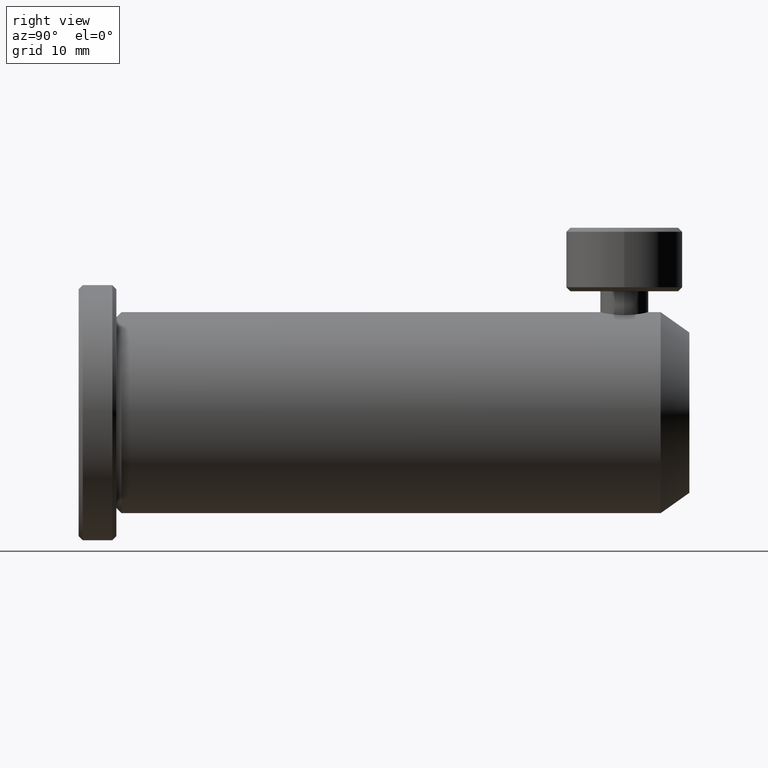
[diagram: clean part render]
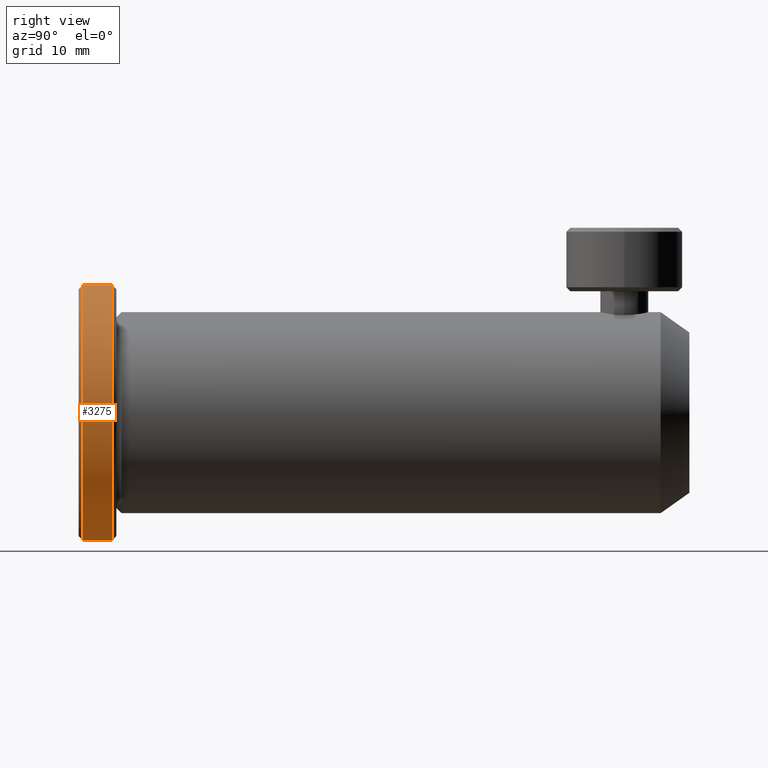
[diagram: same view with one face highlighted and labeled with its STEP entity id]
A machine part, right view. The second image highlights one B-rep face of the part: STEP entity #3275.
In plain terms, the highlighted cylindrical surface (partial cylindrical patch) has radius 15.875 mm, axis along (-0, -1, -0).
Its self-contained STEP definition (entity closure, byte-faithful):
#17 = VECTOR ( 'NONE', #3329, 1000.000000000000000 ) ;
#179 = DIRECTION ( 'NONE',  ( 0.0000000000000000000, 0.0000000000000000000, -1.000000000000000000 ) ) ;
#189 = DIRECTION ( 'NONE',  ( -0.0000000000000000000, -1.000000000000000000, -0.0000000000000000000 ) ) ;
#236 = VERTEX_POINT ( 'NONE', #2259 ) ;
#296 = EDGE_CURVE ( 'NONE', #236, #1124, #430, .T. ) ;
#397 = VECTOR ( 'NONE', #3495, 1000.000000000000000 ) ;
#430 = LINE ( 'NONE', #1432, #17 ) ;
#695 = DIRECTION ( 'NONE',  ( 0.0000000000000000000, 0.0000000000000000000, -1.000000000000000000 ) ) ;
#723 = EDGE_CURVE ( 'NONE', #780, #1124, #2056, .T. ) ;
#727 = AXIS2_PLACEMENT_3D ( 'NONE', #2724, #1870, #179 ) ;
#780 = VERTEX_POINT ( 'NONE', #1634 ) ;
#1034 = CARTESIAN_POINT ( 'NONE',  ( -16.77690416192945100, -19.54783156452665300, 11.84596359904499100 ) ) ;
#1124 = VERTEX_POINT ( 'NONE', #1973 ) ;
#1298 = DIRECTION ( 'NONE',  ( -0.0000000000000000000, -1.000000000000000000, -0.0000000000000000000 ) ) ;
#1385 = AXIS2_PLACEMENT_3D ( 'NONE', #1034, #189, #695 ) ;
#1432 = CARTESIAN_POINT ( 'NONE',  ( -16.77690416192944800, -19.54783156452665300, 27.72096359904498200 ) ) ;
#1602 = EDGE_LOOP ( 'NONE', ( #1903, #1694, #2366, #2992 ) ) ;
#1620 = DIRECTION ( 'NONE',  ( 0.0000000000000000000, 0.0000000000000000000, -1.000000000000000000 ) ) ;
#1634 = CARTESIAN_POINT ( 'NONE',  ( -16.77690416192945100, -19.03983156452665400, -4.029036400955006600 ) ) ;
#1694 = ORIENTED_EDGE ( 'NONE', *, *, #296, .T. ) ;
#1845 = CIRCLE ( 'NONE', #3429, 15.87499999999999300 ) ;
#1870 = DIRECTION ( 'NONE',  ( -0.0000000000000000000, -1.000000000000000000, -0.0000000000000000000 ) ) ;
#1903 = ORIENTED_EDGE ( 'NONE', *, *, #3558, .T. ) ;
#1973 = CARTESIAN_POINT ( 'NONE',  ( -16.77690416192944800, -19.03983156452665400, 27.72096359904498900 ) ) ;
#2056 = CIRCLE ( 'NONE', #727, 15.87499999999999600 ) ;
#2070 = EDGE_CURVE ( 'NONE', #3416, #780, #2267, .T. ) ;
#2259 = CARTESIAN_POINT ( 'NONE',  ( -16.77690416192944800, -15.35683156452665400, 27.72096359904498200 ) ) ;
#2267 = LINE ( 'NONE', #3503, #397 ) ;
#2302 = CYLINDRICAL_SURFACE ( 'NONE', #1385, 15.87499999999999300 ) ;
#2366 = ORIENTED_EDGE ( 'NONE', *, *, #723, .F. ) ;
#2479 = FACE_OUTER_BOUND ( 'NONE', #1602, .T. ) ;
#2574 = CARTESIAN_POINT ( 'NONE',  ( -16.77690416192945100, -15.35683156452665400, -4.029036400955003000 ) ) ;
#2724 = CARTESIAN_POINT ( 'NONE',  ( -16.77690416192945100, -19.03983156452665400, 11.84596359904499100 ) ) ;
#2935 = CARTESIAN_POINT ( 'NONE',  ( -16.77690416192945100, -15.35683156452665400, 11.84596359904499100 ) ) ;
#2992 = ORIENTED_EDGE ( 'NONE', *, *, #2070, .F. ) ;
#3275 = ADVANCED_FACE ( 'NONE', ( #2479 ), #2302, .T. ) ;
#3329 = DIRECTION ( 'NONE',  ( -0.0000000000000000000, -1.000000000000000000, -0.0000000000000000000 ) ) ;
#3416 = VERTEX_POINT ( 'NONE', #2574 ) ;
#3429 = AXIS2_PLACEMENT_3D ( 'NONE', #2935, #1298, #1620 ) ;
#3495 = DIRECTION ( 'NONE',  ( -0.0000000000000000000, -1.000000000000000000, -0.0000000000000000000 ) ) ;
#3503 = CARTESIAN_POINT ( 'NONE',  ( -16.77690416192945100, -19.54783156452665300, -4.029036400955003000 ) ) ;
#3558 = EDGE_CURVE ( 'NONE', #3416, #236, #1845, .T. ) ;